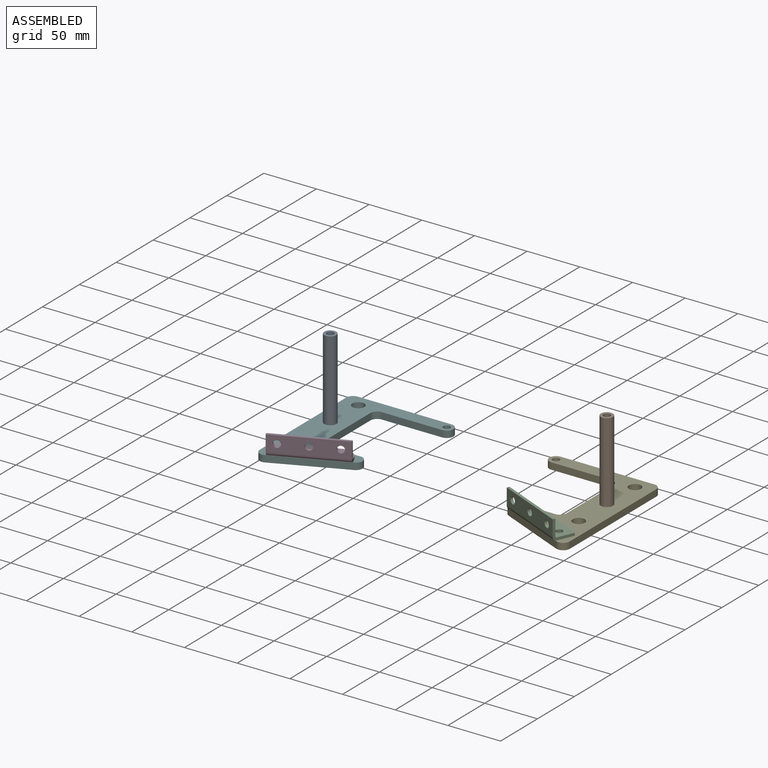
[diagram: assembled view]
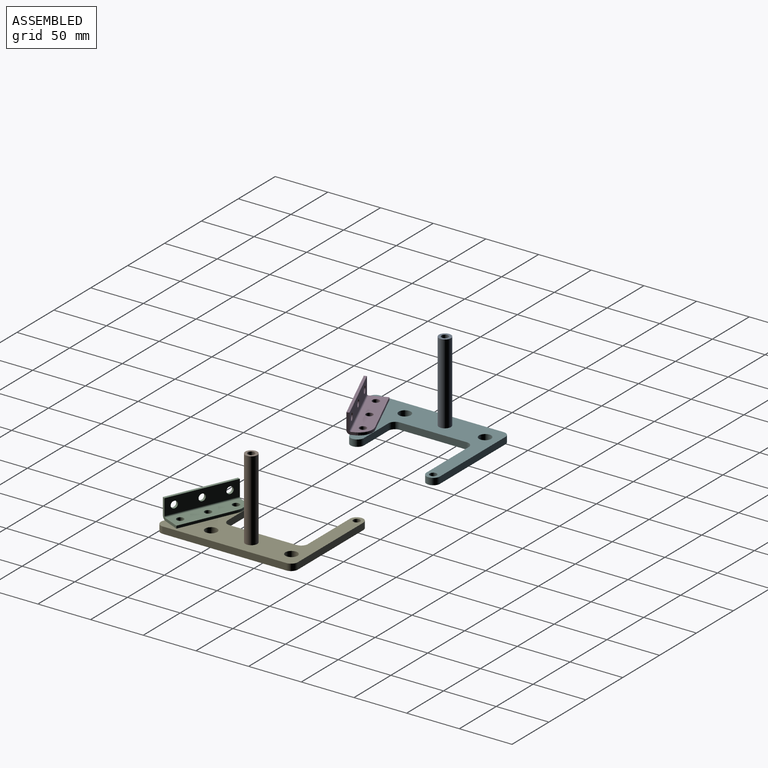
[diagram: assembled view, second angle]
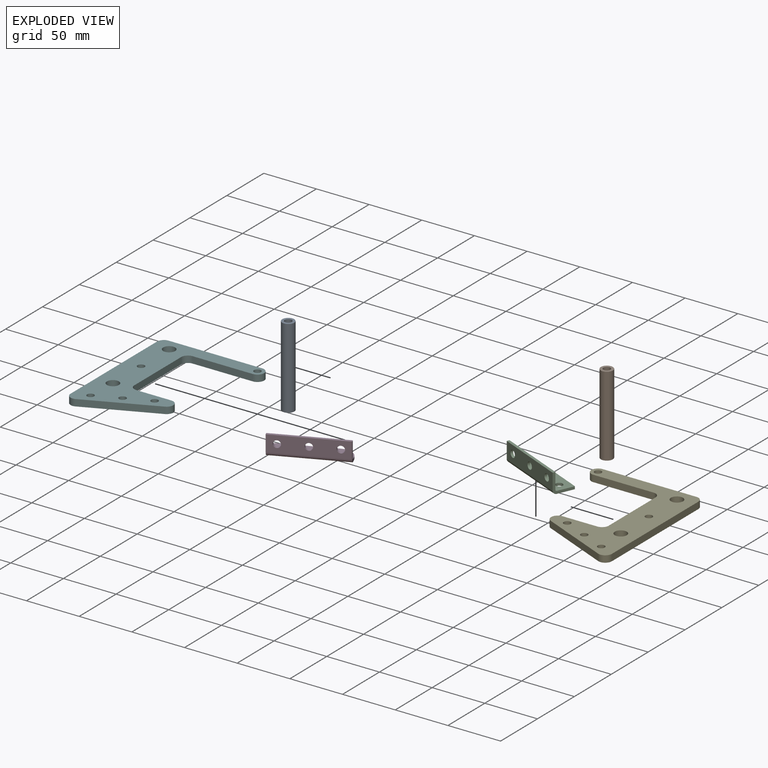
[diagram: exploded view]
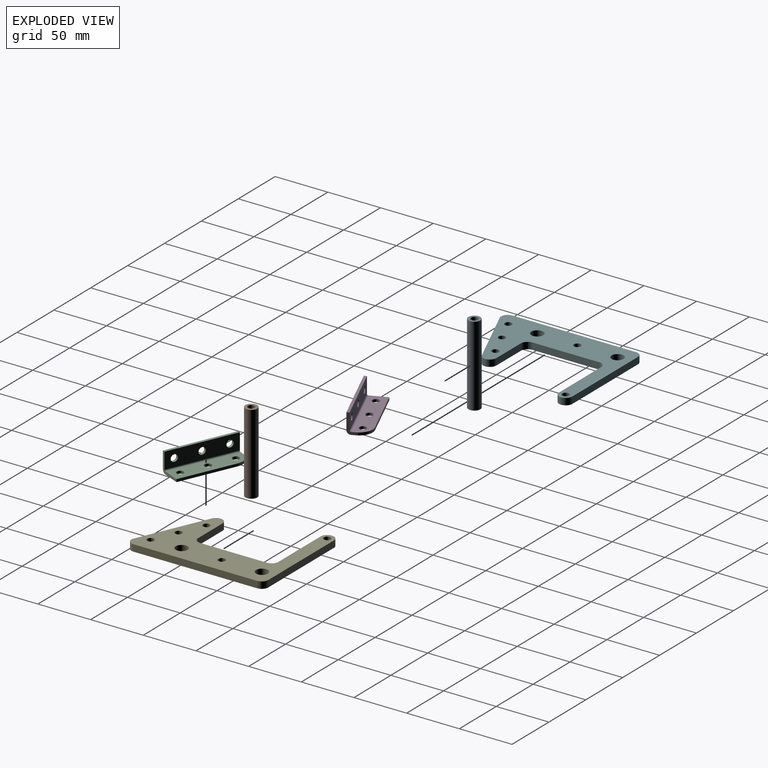
[diagram: exploded view, second angle]
ASSEMBLY  parts=6 mates=4
PART A: 4 faces, bbox 11.4x11.4x76.2 mm
  f0: cylinder r=3.3mm len=76.2mm, axis (0,0,-1), area 1580.9mm2, adj f2,f3
  f1: cylinder r=5.71mm len=76.2mm, axis (0,0,-1), area 2736.2mm2, adj f2,f3
  f2: plane 11.43x11.43mm, normal (0,0,1), area 68.4mm2, adj f0,f1
  f3: plane 11.43x11.43mm, normal (0,0,-1), area 68.4mm2, adj f0,f1
PART B: 4 faces, bbox 11.4x11.4x76.2 mm
  f0: cylinder r=5.71mm len=76.2mm, axis (0,0,-1), area 2736.2mm2, adj f2,f3
  f1: cylinder r=3.3mm len=76.2mm, axis (0,0,-1), area 1580.9mm2, adj f2,f3
  f2: plane 11.43x11.43mm, normal (0,0,1), area 68.4mm2, adj f0,f1
  f3: plane 11.43x11.43mm, normal (0,0,-1), area 68.4mm2, adj f0,f1
PART C: 21 faces, bbox 71x42.1x19.1 mm
  f0: plane 15.17x6.64mm, normal (0.92,-0.4,0), area 42.1mm2, adj f4,f7,f8,f17
  f1: plane 3.54x2.54mm, normal (-0.92,0.4,0), area 9.8mm2, adj f2,f7,f8,f18
  f2: cylinder r=12.7mm len=16.73mm, axis (0,0,1), area 50.7mm2, adj f1,f4,f7,f8
  f3: cylinder r=3.3mm len=6.6mm, axis (0,0,1), area 52.7mm2, adj f7,f8
  f4: plane 51.2x22.4mm, normal (0.4,0.92,0), area 141.9mm2, adj f0,f2,f7,f8
  f5: cylinder r=3.3mm len=6.6mm, axis (0,0,1), area 52.7mm2, adj f7,f8
  f6: cylinder r=3.3mm len=6.6mm, axis (0,0,1), area 52.7mm2, adj f7,f8
  f7: plane 69.47x38.64mm, normal (0,0,-1), area 998.4mm2, adj f0,f1,f2,f3,f4,f5,f6,f19
  f8: plane 69.47x38.64mm, normal (0,0,1), area 998.4mm2, adj f0,f1,f2,f3,f4,f5,f6,f20
  f9: plane 63.85x29.82mm, normal (0,0,1), area 174.2mm2, adj f10,f14,f15,f16
  f10: plane 15.29x2.33mm, normal (-0.92,0.4,0), area 38.8mm2, adj f9,f15,f16,f18
  f11: cylinder r=3.3mm len=7.07mm, axis (-0.4,-0.92,0), area 52.7mm2, adj f15,f16
  f12: cylinder r=3.3mm len=7.07mm, axis (-0.4,-0.92,0), area 52.7mm2, adj f15,f16
  f13: cylinder r=3.3mm len=7.07mm, axis (-0.4,-0.92,0), area 52.7mm2, adj f15,f16
  f14: plane 15.29x2.33mm, normal (0.92,-0.4,0), area 38.8mm2, adj f9,f15,f16,f17
  f15: plane 62.83x27.49mm, normal (-0.4,-0.92,0), area 945.9mm2, adj f9,f10,f11,f12,f13,f14,f19
  f16: plane 62.83x27.49mm, normal (0.4,0.92,0), area 945.9mm2, adj f9,f10,f11,f12,f13,f14,f20
  f17: plane 3.76x3.44mm, normal (0.92,-0.4,0), area 9.9mm2, adj f0,f14,f19,f20
  f18: plane 3.76x3.44mm, normal (-0.92,0.4,0), area 9.9mm2, adj f1,f10,f19,f20
  f19: cylinder r=3.76mm len=64.34mm, axis (0.92,-0.4,0), area 405mm2, adj f7,f15,f17,f18
  f20: cylinder r=1.22mm len=63.32mm, axis (0.92,-0.4,0), area 131.3mm2, adj f8,f16,f17,f18
PART D: 21 faces, bbox 71x42.1x19.1 mm
  f0: plane 15.17x6.64mm, normal (-0.92,-0.4,0), area 42.1mm2, adj f1,f7,f8,f17
  f1: plane 51.2x22.4mm, normal (-0.4,0.92,0), area 141.9mm2, adj f0,f2,f7,f8
  f2: cylinder r=12.7mm len=16.73mm, axis (0,0,1), area 50.7mm2, adj f1,f3,f7,f8
  f3: plane 3.54x2.54mm, normal (0.92,0.4,0), area 9.8mm2, adj f2,f7,f8,f18
  f4: cylinder r=3.3mm len=6.6mm, axis (0,0,1), area 52.7mm2, adj f7,f8
  f5: cylinder r=3.3mm len=6.6mm, axis (0,0,1), area 52.7mm2, adj f7,f8
  f6: cylinder r=3.3mm len=6.6mm, axis (0,0,1), area 52.7mm2, adj f7,f8
  f7: plane 69.47x38.64mm, normal (0,0,-1), area 998.4mm2, adj f0,f1,f2,f3,f4,f5,f6,f19
  f8: plane 69.47x38.64mm, normal (0,0,1), area 998.4mm2, adj f0,f1,f2,f3,f4,f5,f6,f20
  f9: plane 63.85x29.82mm, normal (0,0,1), area 174.2mm2, adj f10,f14,f15,f16
  f10: plane 15.29x2.33mm, normal (-0.92,-0.4,0), area 38.8mm2, adj f9,f15,f16,f17
  f11: cylinder r=3.3mm len=7.07mm, axis (0.4,-0.92,0), area 52.7mm2, adj f15,f16
  f12: cylinder r=3.3mm len=7.07mm, axis (0.4,-0.92,0), area 52.7mm2, adj f15,f16
  f13: cylinder r=3.3mm len=7.07mm, axis (0.4,-0.92,0), area 52.7mm2, adj f15,f16
  f14: plane 15.29x2.33mm, normal (0.92,0.4,0), area 38.8mm2, adj f9,f15,f16,f18
  f15: plane 62.83x27.49mm, normal (0.4,-0.92,0), area 945.9mm2, adj f9,f10,f11,f12,f13,f14,f19
  f16: plane 62.83x27.49mm, normal (-0.4,0.92,0), area 945.9mm2, adj f9,f10,f11,f12,f13,f14,f20
  f17: plane 3.76x3.44mm, normal (-0.92,-0.4,0), area 9.9mm2, adj f0,f10,f19,f20
  f18: plane 3.76x3.44mm, normal (0.92,0.4,0), area 9.9mm2, adj f3,f14,f19,f20
  f19: cylinder r=3.76mm len=64.34mm, axis (-0.92,-0.4,0), area 405mm2, adj f7,f15,f17,f18
  f20: cylinder r=1.22mm len=63.32mm, axis (-0.92,-0.4,0), area 131.3mm2, adj f8,f16,f17,f18
PART E: 21 faces, bbox 101.6x130x6.4 mm
  f0: cylinder r=6.35mm len=12.7mm, axis (0,0,-1), area 126.7mm2, adj f1,f17,f19,f20
  f1: plane 57.15x6.35mm, normal (0,-1,0), area 362.9mm2, adj f0,f2,f19,f20
  f2: cylinder r=6.35mm len=6.35mm, axis (0,0,-1), area 63.3mm2, adj f1,f3,f19,f20
  f3: plane 63.5x6.35mm, normal (-1,0,0), area 403.2mm2, adj f2,f4,f19,f20
  f4: cylinder r=6.35mm len=6.35mm, axis (0,0,-1), area 63.3mm2, adj f3,f5,f19,f20
  f5: plane 33.14x6.35mm, normal (0,1,0), area 210.5mm2, adj f4,f6,f19,f20
  f6: cylinder r=6.35mm len=12.17mm, axis (0,0,-1), area 110mm2, adj f5,f7,f19,f20
  f7: plane 64.89x28.39mm, normal (-0.4,-0.92,0), area 449.8mm2, adj f6,f8,f19,f20
  f8: cylinder r=6.35mm len=8.9mm, axis (0,0,-1), area 80mm2, adj f7,f9,f19,f20
  f9: plane 117.29x6.35mm, normal (1,0,0), area 744.8mm2, adj f8,f10,f19,f20
  f10: cylinder r=6.35mm len=6.35mm, axis (0,0,-1), area 63.3mm2, adj f9,f17,f19,f20
  f11: cylinder r=5.71mm len=11.43mm, axis (0,0,-1), area 228mm2, adj f19,f20
  f12: cylinder r=3.3mm len=6.6mm, axis (0,0,-1), area 131.7mm2, adj f19,f20
  f13: cylinder r=3.3mm len=6.6mm, axis (0,0,-1), area 131.7mm2, adj f19,f20
  f14: cylinder r=3.3mm len=6.6mm, axis (0,0,-1), area 131.7mm2, adj f19,f20
  f15: cylinder r=3.3mm len=6.6mm, axis (0,0,-1), area 131.7mm2, adj f19,f20
  f16: cylinder r=3.3mm len=6.6mm, axis (0,0,-1), area 131.7mm2, adj f19,f20
  f17: plane 88.9x6.35mm, normal (0,1,0), area 564.5mm2, adj f0,f10,f19,f20
  f18: cylinder r=5.71mm len=11.43mm, axis (0,0,-1), area 228mm2, adj f19,f20
  f19: plane 129.99x101.6mm, normal (0,0,1), area 5423.2mm2, adj f0,f1,f2,f3,f4,f5,f6,f7
  f20: plane 129.99x101.6mm, normal (0,0,-1), area 5423.2mm2, adj f0,f1,f2,f3,f4,f5,f6,f7
PART F: 21 faces, bbox 101.6x130x6.4 mm
  f0: cylinder r=6.35mm len=6.35mm, axis (0,0,-1), area 63.3mm2, adj f1,f18,f19,f20
  f1: plane 117.29x6.35mm, normal (-1,0,0), area 744.8mm2, adj f0,f2,f19,f20
  f2: cylinder r=6.35mm len=8.9mm, axis (0,0,-1), area 80mm2, adj f1,f3,f19,f20
  f3: plane 64.89x28.39mm, normal (0.4,-0.92,0), area 449.8mm2, adj f2,f4,f19,f20
  f4: cylinder r=6.35mm len=12.17mm, axis (0,0,-1), area 110mm2, adj f3,f5,f19,f20
  f5: plane 33.14x6.35mm, normal (0,1,0), area 210.5mm2, adj f4,f6,f19,f20
  f6: cylinder r=6.35mm len=6.35mm, axis (0,0,-1), area 63.3mm2, adj f5,f7,f19,f20
  f7: plane 63.5x6.35mm, normal (1,0,0), area 403.2mm2, adj f6,f8,f19,f20
  f8: cylinder r=6.35mm len=6.35mm, axis (0,0,-1), area 63.3mm2, adj f7,f9,f19,f20
  f9: plane 57.15x6.35mm, normal (0,-1,0), area 362.9mm2, adj f8,f10,f19,f20
  f10: cylinder r=6.35mm len=12.7mm, axis (0,0,-1), area 126.7mm2, adj f9,f18,f19,f20
  f11: cylinder r=3.3mm len=6.6mm, axis (0,0,-1), area 131.7mm2, adj f19,f20
  f12: cylinder r=5.71mm len=11.43mm, axis (0,0,-1), area 228mm2, adj f19,f20
  f13: cylinder r=3.3mm len=6.6mm, axis (0,0,-1), area 131.7mm2, adj f19,f20
  f14: cylinder r=5.71mm len=11.43mm, axis (0,0,-1), area 228mm2, adj f19,f20
  f15: cylinder r=3.3mm len=6.6mm, axis (0,0,-1), area 131.7mm2, adj f19,f20
  f16: cylinder r=3.3mm len=6.6mm, axis (0,0,-1), area 131.7mm2, adj f19,f20
  f17: cylinder r=3.3mm len=6.6mm, axis (0,0,-1), area 131.7mm2, adj f19,f20
  f18: plane 88.9x6.35mm, normal (0,1,0), area 564.5mm2, adj f0,f10,f19,f20
  f19: plane 129.99x101.6mm, normal (0,0,1), area 5423.2mm2, adj f0,f1,f2,f3,f4,f5,f6,f7
  f20: plane 129.99x101.6mm, normal (0,0,-1), area 5423.2mm2, adj f0,f1,f2,f3,f4,f5,f6,f7
PLACE A t=(-45.23,-3.48,-41.77)mm
PLACE B t=(-45.23,-3.48,-41.77)mm
PLACE C t=(-45.23,-3.48,-41.77)mm
PLACE D t=(-45.23,-3.48,-41.77)mm
PLACE E t=(-45.23,-3.48,-41.77)mm
PLACE F t=(-45.23,-3.48,-41.77)mm
MATE fastened C.f3 <-> E.f12  axis (0,0,-1) through (109.65,-21.69,-35.42)mm
MATE fastened A.f0 <-> F.f13  axis (0,0,-1) through (-130.95,34.62,-35.42)mm
MATE fastened B.f0 <-> E.f16  axis (0,0,-1) through (131.55,34.62,-35.42)mm
MATE fastened D.f5 <-> F.f16  axis (0,0,-1) through (-109.05,-21.69,-35.42)mm
